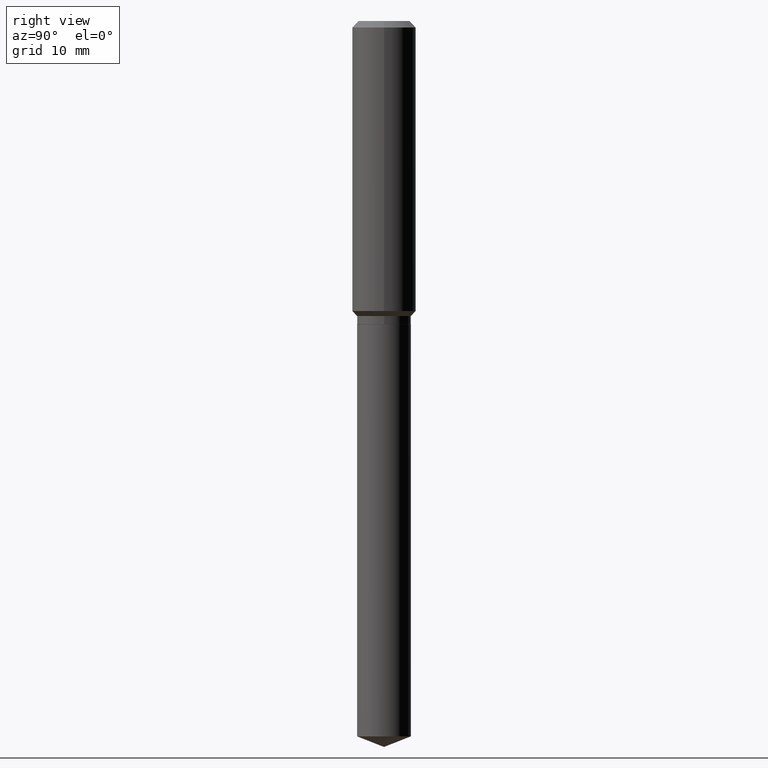
[diagram: clean part render]
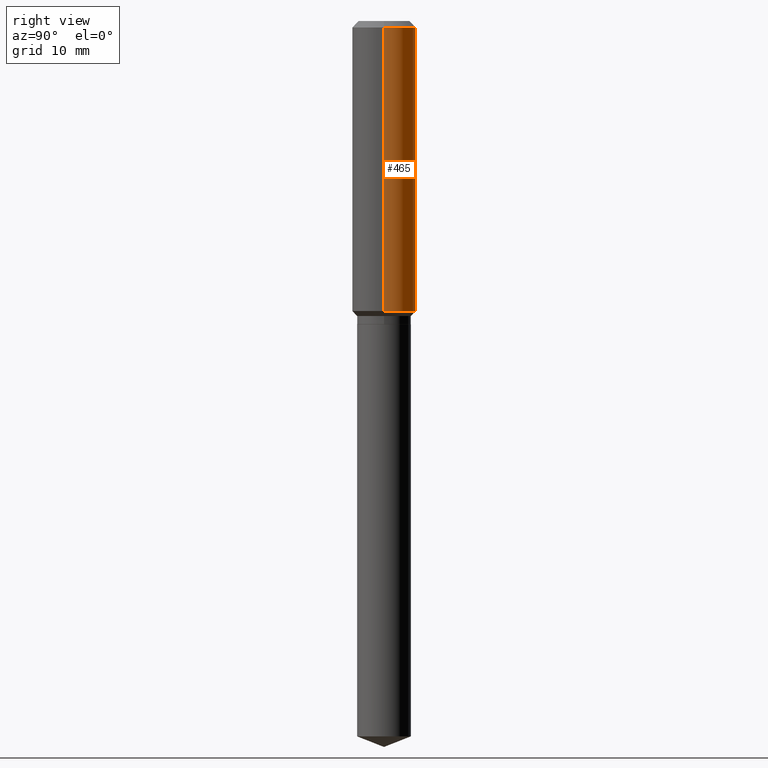
[diagram: same view with one face highlighted and labeled with its STEP entity id]
A machine part, right view. The second image highlights one B-rep face of the part: STEP entity #465.
In plain terms, the highlighted cylindrical surface (edge-blend (fillet) strip) has radius 4.0005 mm, axis along (-0, 0, 1).
Its self-contained STEP definition (entity closure, byte-faithful):
#1 = LINE ( 'NONE', #448, #132 ) ;
#23 = AXIS2_PLACEMENT_3D ( 'NONE', #33, #185, #114 ) ;
#33 = CARTESIAN_POINT ( 'NONE',  ( 3.500566322613714211E-29, -4.997880962487020966E-15, -1.431450000000000111 ) ) ;
#45 = EDGE_LOOP ( 'NONE', ( #374, #485, #428, #104 ) ) ;
#71 = DIRECTION ( 'NONE',  ( 1.000000000000000000, -6.982962677686265922E-15, 0.000000000000000000 ) ) ;
#77 = DIRECTION ( 'NONE',  ( -2.445468806185136597E-29, 3.491481338843145583E-15, 1.000000000000000000 ) ) ;
#80 = CARTESIAN_POINT ( 'NONE',  ( 0.000000000000000000, 0.000000000000000000, 0.000000000000000000 ) ) ;
#83 = EDGE_CURVE ( 'NONE', #407, #310, #101, .T. ) ;
#101 = LINE ( 'NONE', #130, #298 ) ;
#104 = ORIENTED_EDGE ( 'NONE', *, *, #351, .F. ) ;
#108 = CARTESIAN_POINT ( 'NONE',  ( -0.1575000000000000011, -1.434826503508131819E-15, -0.03150000000000019451 ) ) ;
#114 = DIRECTION ( 'NONE',  ( 1.000000000000000000, -6.982962677686267499E-15, 0.000000000000000000 ) ) ;
#124 = CARTESIAN_POINT ( 'NONE',  ( 0.1575000000000001676, -6.097697584222609235E-15, -1.431450000000000111 ) ) ;
#127 = DIRECTION ( 'NONE',  ( 1.000000000000000000, -6.982962677686267499E-15, 4.876176775795936353E-29 ) ) ;
#130 = CARTESIAN_POINT ( 'NONE',  ( -0.1575000000000000844, 1.119104808822158392E-15, -7.747322767151481189E-30 ) ) ;
#132 = VECTOR ( 'NONE', #458, 39.37007874015748143 ) ;
#148 = DIRECTION ( 'NONE',  ( -2.445468806185136597E-29, 3.491481338843145583E-15, 1.000000000000000000 ) ) ;
#158 = FACE_OUTER_BOUND ( 'NONE', #45, .T. ) ;
#175 = AXIS2_PLACEMENT_3D ( 'NONE', #80, #77, #127 ) ;
#185 = DIRECTION ( 'NONE',  ( -2.445468806185136597E-29, 3.491481338843145583E-15, 1.000000000000000000 ) ) ;
#204 = DIRECTION ( 'NONE',  ( -2.445468806185136877E-29, 3.491481338843145188E-15, 1.000000000000000000 ) ) ;
#213 = CARTESIAN_POINT ( 'NONE',  ( -0.1575000000000001676, -3.878776153664862573E-15, -1.431450000000000111 ) ) ;
#273 = AXIS2_PLACEMENT_3D ( 'NONE', #333, #148, #71 ) ;
#280 = CIRCLE ( 'NONE', #23, 0.1575000000000001676 ) ;
#298 = VECTOR ( 'NONE', #204, 39.37007874015748143 ) ;
#309 = CIRCLE ( 'NONE', #273, 0.1575000000000000011 ) ;
#310 = VERTEX_POINT ( 'NONE', #108 ) ;
#333 = CARTESIAN_POINT ( 'NONE',  ( 7.703226739483228723E-31, -1.099816621735597661E-16, -0.03150000000000019451 ) ) ;
#351 = EDGE_CURVE ( 'NONE', #444, #378, #1, .T. ) ;
#373 = EDGE_CURVE ( 'NONE', #378, #310, #309, .T. ) ;
#374 = ORIENTED_EDGE ( 'NONE', *, *, #414, .T. ) ;
#378 = VERTEX_POINT ( 'NONE', #413 ) ;
#383 = CYLINDRICAL_SURFACE ( 'NONE', #175, 0.1575000000000000844 ) ;
#407 = VERTEX_POINT ( 'NONE', #213 ) ;
#413 = CARTESIAN_POINT ( 'NONE',  ( 0.1575000000000000011, -1.209798283909146741E-15, -0.03150000000000019451 ) ) ;
#414 = EDGE_CURVE ( 'NONE', #444, #407, #280, .T. ) ;
#428 = ORIENTED_EDGE ( 'NONE', *, *, #373, .F. ) ;
#444 = VERTEX_POINT ( 'NONE', #124 ) ;
#448 = CARTESIAN_POINT ( 'NONE',  ( 0.1575000000000000844, -1.099816621735587677E-15, 7.679978421878603638E-30 ) ) ;
#458 = DIRECTION ( 'NONE',  ( -2.445468806185136877E-29, 3.491481338843145188E-15, 1.000000000000000000 ) ) ;
#465 = ADVANCED_FACE ( 'NONE', ( #158 ), #383, .T. ) ;
#485 = ORIENTED_EDGE ( 'NONE', *, *, #83, .T. ) ;